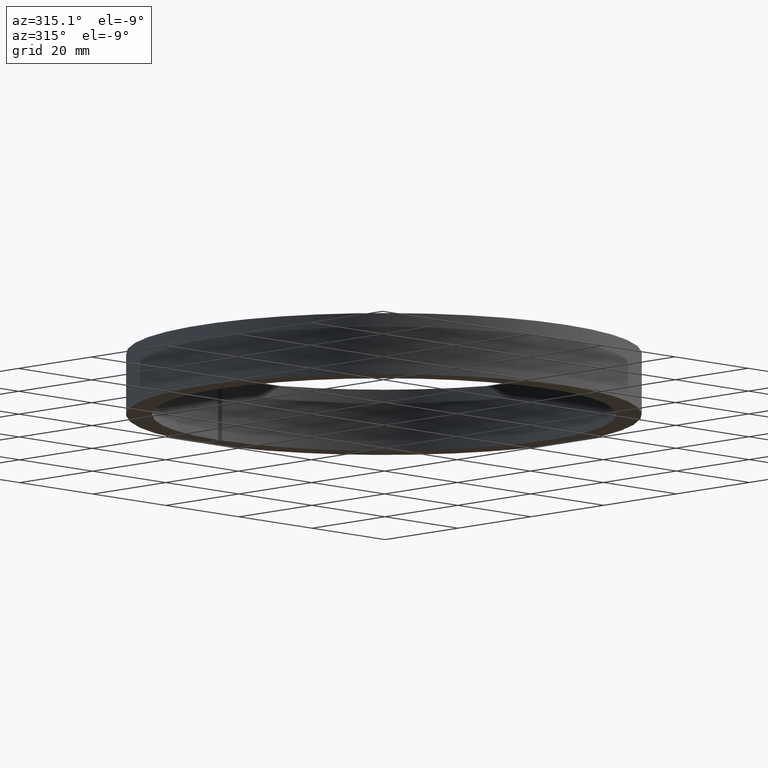
[diagram: clean part render]
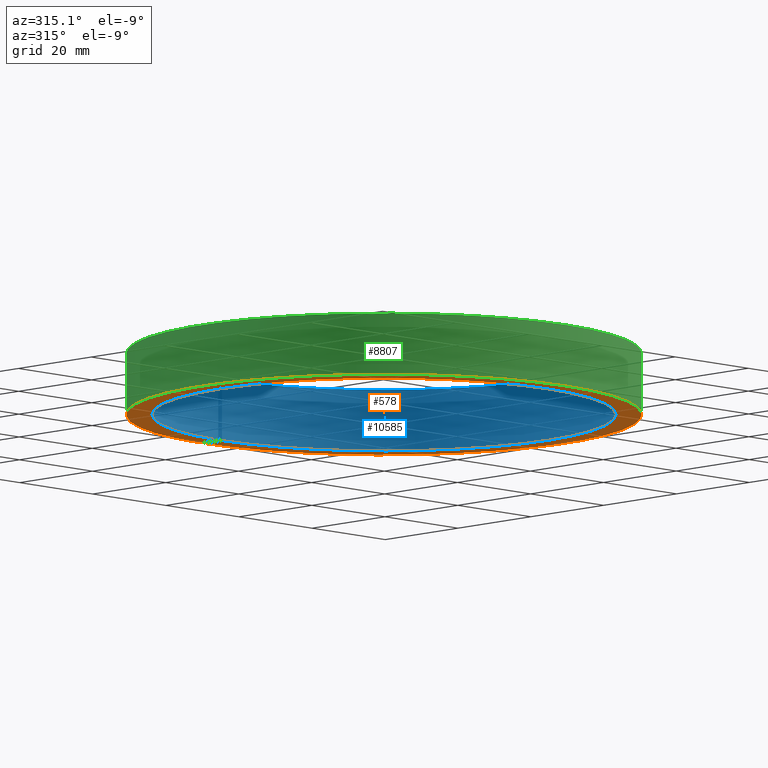
[diagram: same view with three faces highlighted in distinct colors, each labeled with its STEP entity id]
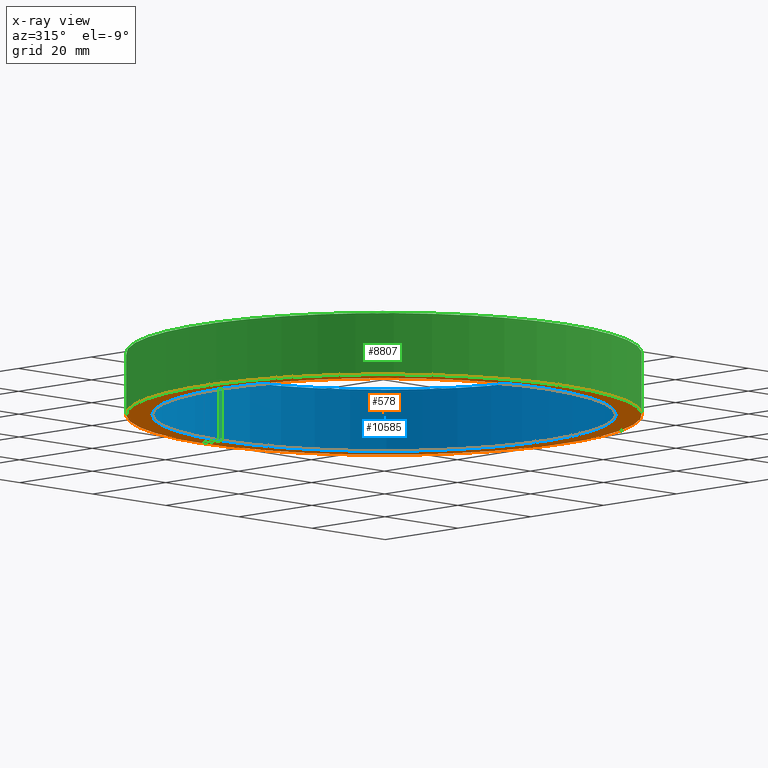
[diagram: x-ray of the same camera — body ghosted, the three highlighted faces saturated]
A machine part, auxiliary view with three faces highlighted in distinct colors.
The next image is the same camera in x-ray (body ghosted, the three faces saturated) — at least one of them is partly hidden behind the body in this view.
Their STEP definitions:

[orange] entity #578 — the highlighted planar face has unit normal (0, 0, 1).
#578 = ADVANCED_FACE ( 'NONE', ( #6791 ), #9005, .F. ) ;
#1194 = EDGE_CURVE ( 'NONE', #7852, #7954, #6349, .T. ) ;
#1467 = CARTESIAN_POINT ( 'NONE',  ( 0.000000000000000000, 0.000000000000000000, -6.000000000000003553 ) ) ;
#1851 = AXIS2_PLACEMENT_3D ( 'NONE', #1467, #6240, #3358 ) ;
#3217 = CARTESIAN_POINT ( 'NONE',  ( -0.5000000000000000000, 0.000000000000000000, -6.000000000000003553 ) ) ;
#3358 = DIRECTION ( 'NONE',  ( -1.000000000000000000, 0.000000000000000000, 0.000000000000000000 ) ) ;
#3669 = EDGE_CURVE ( 'NONE', #9272, #11662, #9177, .T. ) ;
#3751 = DIRECTION ( 'NONE',  ( -0.000000000000000000, -0.000000000000000000, -1.000000000000000000 ) ) ;
#3787 = VECTOR ( 'NONE', #11438, 1000.000000000000000 ) ;
#4240 = VECTOR ( 'NONE', #8148, 1000.000000000000000 ) ;
#4373 = ORIENTED_EDGE ( 'NONE', *, *, #1194, .F. ) ;
#4642 = CARTESIAN_POINT ( 'NONE',  ( 0.000000000000000000, 0.000000000000000000, -6.000000000000002665 ) ) ;
#5013 = CARTESIAN_POINT ( 'NONE',  ( -0.5000000000000000000, 44.99722213648305313, -6.000000000000003553 ) ) ;
#5561 = DIRECTION ( 'NONE',  ( -1.000000000000000000, 0.000000000000000000, 0.000000000000000000 ) ) ;
#5852 = ORIENTED_EDGE ( 'NONE', *, *, #10098, .T. ) ;
#6240 = DIRECTION ( 'NONE',  ( -0.000000000000000000, -0.000000000000000000, -1.000000000000000000 ) ) ;
#6349 = LINE ( 'NONE', #3217, #4240 ) ;
#6791 = FACE_OUTER_BOUND ( 'NONE', #6871, .T. ) ;
#6871 = EDGE_LOOP ( 'NONE', ( #9551, #8939, #5852, #4373 ) ) ;
#6940 = CARTESIAN_POINT ( 'NONE',  ( 0.5000000000000000000, 49.99749993749687604, -6.000000000000003553 ) ) ;
#7243 = CIRCLE ( 'NONE', #1851, 50.00000000000000000 ) ;
#7315 = CARTESIAN_POINT ( 'NONE',  ( -0.5000000000000000000, 49.99749993749687604, -6.000000000000003553 ) ) ;
#7852 = VERTEX_POINT ( 'NONE', #5013 ) ;
#7940 = CARTESIAN_POINT ( 'NONE',  ( 0.5000000000000000000, 44.99722213648305313, -6.000000000000003553 ) ) ;
#7954 = VERTEX_POINT ( 'NONE', #7315 ) ;
#8148 = DIRECTION ( 'NONE',  ( 0.000000000000000000, 1.000000000000000000, -0.000000000000000000 ) ) ;
#8939 = ORIENTED_EDGE ( 'NONE', *, *, #3669, .T. ) ;
#9005 = PLANE ( 'NONE',  #10828 ) ;
#9177 = LINE ( 'NONE', #12380, #3787 ) ;
#9272 = VERTEX_POINT ( 'NONE', #7940 ) ;
#9551 = ORIENTED_EDGE ( 'NONE', *, *, #9589, .F. ) ;
#9589 = EDGE_CURVE ( 'NONE', #9272, #7852, #9629, .T. ) ;
#9629 = CIRCLE ( 'NONE', #9780, 45.00000000000000711 ) ;
#9780 = AXIS2_PLACEMENT_3D ( 'NONE', #4642, #3751, #5561 ) ;
#9930 = DIRECTION ( 'NONE',  ( 1.000000000000000000, 0.000000000000000000, -0.000000000000000000 ) ) ;
#10005 = DIRECTION ( 'NONE',  ( 0.000000000000000000, 0.000000000000000000, 1.000000000000000000 ) ) ;
#10098 = EDGE_CURVE ( 'NONE', #11662, #7954, #7243, .T. ) ;
#10828 = AXIS2_PLACEMENT_3D ( 'NONE', #11944, #10005, #9930 ) ;
#11438 = DIRECTION ( 'NONE',  ( 0.000000000000000000, 1.000000000000000000, -0.000000000000000000 ) ) ;
#11662 = VERTEX_POINT ( 'NONE', #6940 ) ;
#11944 = CARTESIAN_POINT ( 'NONE',  ( 0.000000000000000000, -45.00000000000000711, -6.000000000000003553 ) ) ;
#12380 = CARTESIAN_POINT ( 'NONE',  ( 0.5000000000000000000, 0.000000000000000000, -6.000000000000003553 ) ) ;

[blue] entity #10585 — the highlighted cylindrical surface (partial cylindrical patch) has radius 45 mm, axis along (-0, -0, -1).
#641 = VECTOR ( 'NONE', #4727, 1000.000000000000000 ) ;
#1896 = EDGE_CURVE ( 'NONE', #11989, #6311, #10073, .T. ) ;
#1911 = EDGE_CURVE ( 'NONE', #9272, #11989, #12030, .T. ) ;
#2184 = CARTESIAN_POINT ( 'NONE',  ( -0.5000000000000000000, 44.99722213648305313, 5.999999999999996447 ) ) ;
#2360 = DIRECTION ( 'NONE',  ( -0.000000000000000000, -0.000000000000000000, -1.000000000000000000 ) ) ;
#2453 = DIRECTION ( 'NONE',  ( -1.000000000000000000, 0.000000000000000000, 0.000000000000000000 ) ) ;
#2792 = CARTESIAN_POINT ( 'NONE',  ( 0.000000000000000000, 0.000000000000000000, 5.999999999999996447 ) ) ;
#3751 = DIRECTION ( 'NONE',  ( -0.000000000000000000, -0.000000000000000000, -1.000000000000000000 ) ) ;
#4097 = LINE ( 'NONE', #6347, #6946 ) ;
#4546 = CYLINDRICAL_SURFACE ( 'NONE', #11314, 45.00000000000000711 ) ;
#4642 = CARTESIAN_POINT ( 'NONE',  ( 0.000000000000000000, 0.000000000000000000, -6.000000000000002665 ) ) ;
#4727 = DIRECTION ( 'NONE',  ( -0.000000000000000000, -0.000000000000000000, 1.000000000000000000 ) ) ;
#4761 = DIRECTION ( 'NONE',  ( -1.000000000000000000, 0.000000000000000000, 0.000000000000000000 ) ) ;
#5013 = CARTESIAN_POINT ( 'NONE',  ( -0.5000000000000000000, 44.99722213648305313, -6.000000000000003553 ) ) ;
#5561 = DIRECTION ( 'NONE',  ( -1.000000000000000000, 0.000000000000000000, 0.000000000000000000 ) ) ;
#5736 = FACE_OUTER_BOUND ( 'NONE', #6865, .T. ) ;
#6311 = VERTEX_POINT ( 'NONE', #2184 ) ;
#6347 = CARTESIAN_POINT ( 'NONE',  ( -0.5000000000000000000, 44.99722213648305313, -6.000000000000003553 ) ) ;
#6399 = AXIS2_PLACEMENT_3D ( 'NONE', #2792, #9487, #4761 ) ;
#6865 = EDGE_LOOP ( 'NONE', ( #7801, #11358, #9547, #10588 ) ) ;
#6946 = VECTOR ( 'NONE', #8519, 1000.000000000000000 ) ;
#7567 = CARTESIAN_POINT ( 'NONE',  ( 0.5000000000000000000, 44.99722213648305313, -6.000000000000003553 ) ) ;
#7801 = ORIENTED_EDGE ( 'NONE', *, *, #1896, .F. ) ;
#7852 = VERTEX_POINT ( 'NONE', #5013 ) ;
#7940 = CARTESIAN_POINT ( 'NONE',  ( 0.5000000000000000000, 44.99722213648305313, -6.000000000000003553 ) ) ;
#8519 = DIRECTION ( 'NONE',  ( -0.000000000000000000, -0.000000000000000000, 1.000000000000000000 ) ) ;
#8797 = EDGE_CURVE ( 'NONE', #7852, #6311, #4097, .T. ) ;
#9272 = VERTEX_POINT ( 'NONE', #7940 ) ;
#9487 = DIRECTION ( 'NONE',  ( -0.000000000000000000, -0.000000000000000000, -1.000000000000000000 ) ) ;
#9547 = ORIENTED_EDGE ( 'NONE', *, *, #9589, .T. ) ;
#9589 = EDGE_CURVE ( 'NONE', #9272, #7852, #9629, .T. ) ;
#9629 = CIRCLE ( 'NONE', #9780, 45.00000000000000711 ) ;
#9780 = AXIS2_PLACEMENT_3D ( 'NONE', #4642, #3751, #5561 ) ;
#10073 = CIRCLE ( 'NONE', #6399, 45.00000000000000711 ) ;
#10585 = ADVANCED_FACE ( 'NONE', ( #5736 ), #4546, .F. ) ;
#10588 = ORIENTED_EDGE ( 'NONE', *, *, #8797, .T. ) ;
#11314 = AXIS2_PLACEMENT_3D ( 'NONE', #11963, #2360, #2453 ) ;
#11358 = ORIENTED_EDGE ( 'NONE', *, *, #1911, .F. ) ;
#11740 = CARTESIAN_POINT ( 'NONE',  ( 0.5000000000000000000, 44.99722213648305313, 5.999999999999996447 ) ) ;
#11963 = CARTESIAN_POINT ( 'NONE',  ( 0.000000000000000000, 0.000000000000000000, 0.000000000000000000 ) ) ;
#11989 = VERTEX_POINT ( 'NONE', #11740 ) ;
#12030 = LINE ( 'NONE', #7567, #641 ) ;

[green] entity #8807 — the highlighted cylindrical surface (partial cylindrical patch) has radius 50 mm, axis along (-0, -0, -1).
#6 = EDGE_LOOP ( 'NONE', ( #8401, #7489, #6237, #3426 ) ) ;
#891 = CARTESIAN_POINT ( 'NONE',  ( -0.5000000000000000000, 49.99749993749687604, -6.000000000000003553 ) ) ;
#1157 = CARTESIAN_POINT ( 'NONE',  ( 0.5000000000000000000, 49.99749993749687604, 5.999999999999996447 ) ) ;
#1245 = VECTOR ( 'NONE', #2813, 1000.000000000000000 ) ;
#1467 = CARTESIAN_POINT ( 'NONE',  ( 0.000000000000000000, 0.000000000000000000, -6.000000000000003553 ) ) ;
#1733 = DIRECTION ( 'NONE',  ( -1.000000000000000000, 0.000000000000000000, 0.000000000000000000 ) ) ;
#1813 = DIRECTION ( 'NONE',  ( -0.000000000000000000, -0.000000000000000000, -1.000000000000000000 ) ) ;
#1851 = AXIS2_PLACEMENT_3D ( 'NONE', #1467, #6240, #3358 ) ;
#2119 = VERTEX_POINT ( 'NONE', #2486 ) ;
#2486 = CARTESIAN_POINT ( 'NONE',  ( -0.5000000000000000000, 49.99749993749687604, 5.999999999999996447 ) ) ;
#2772 = DIRECTION ( 'NONE',  ( -1.000000000000000000, 0.000000000000000000, 0.000000000000000000 ) ) ;
#2813 = DIRECTION ( 'NONE',  ( -0.000000000000000000, -0.000000000000000000, 1.000000000000000000 ) ) ;
#3358 = DIRECTION ( 'NONE',  ( -1.000000000000000000, 0.000000000000000000, 0.000000000000000000 ) ) ;
#3426 = ORIENTED_EDGE ( 'NONE', *, *, #3609, .F. ) ;
#3591 = EDGE_CURVE ( 'NONE', #11657, #2119, #11881, .T. ) ;
#3609 = EDGE_CURVE ( 'NONE', #7954, #2119, #12033, .T. ) ;
#6046 = VECTOR ( 'NONE', #9698, 1000.000000000000000 ) ;
#6059 = LINE ( 'NONE', #12459, #6046 ) ;
#6237 = ORIENTED_EDGE ( 'NONE', *, *, #3591, .T. ) ;
#6240 = DIRECTION ( 'NONE',  ( -0.000000000000000000, -0.000000000000000000, -1.000000000000000000 ) ) ;
#6940 = CARTESIAN_POINT ( 'NONE',  ( 0.5000000000000000000, 49.99749993749687604, -6.000000000000003553 ) ) ;
#7243 = CIRCLE ( 'NONE', #1851, 50.00000000000000000 ) ;
#7298 = AXIS2_PLACEMENT_3D ( 'NONE', #10989, #1813, #1733 ) ;
#7315 = CARTESIAN_POINT ( 'NONE',  ( -0.5000000000000000000, 49.99749993749687604, -6.000000000000003553 ) ) ;
#7489 = ORIENTED_EDGE ( 'NONE', *, *, #8477, .T. ) ;
#7665 = CARTESIAN_POINT ( 'NONE',  ( 0.000000000000000000, 0.000000000000000000, 5.999999999999996447 ) ) ;
#7954 = VERTEX_POINT ( 'NONE', #7315 ) ;
#8401 = ORIENTED_EDGE ( 'NONE', *, *, #10098, .F. ) ;
#8462 = FACE_OUTER_BOUND ( 'NONE', #6, .T. ) ;
#8477 = EDGE_CURVE ( 'NONE', #11662, #11657, #6059, .T. ) ;
#8512 = DIRECTION ( 'NONE',  ( -0.000000000000000000, -0.000000000000000000, -1.000000000000000000 ) ) ;
#8807 = ADVANCED_FACE ( 'NONE', ( #8462 ), #10699, .T. ) ;
#9698 = DIRECTION ( 'NONE',  ( -0.000000000000000000, -0.000000000000000000, 1.000000000000000000 ) ) ;
#10098 = EDGE_CURVE ( 'NONE', #11662, #7954, #7243, .T. ) ;
#10699 = CYLINDRICAL_SURFACE ( 'NONE', #7298, 50.00000000000000000 ) ;
#10885 = AXIS2_PLACEMENT_3D ( 'NONE', #7665, #8512, #2772 ) ;
#10989 = CARTESIAN_POINT ( 'NONE',  ( 0.000000000000000000, 0.000000000000000000, 0.000000000000000000 ) ) ;
#11657 = VERTEX_POINT ( 'NONE', #1157 ) ;
#11662 = VERTEX_POINT ( 'NONE', #6940 ) ;
#11881 = CIRCLE ( 'NONE', #10885, 50.00000000000000000 ) ;
#12033 = LINE ( 'NONE', #891, #1245 ) ;
#12459 = CARTESIAN_POINT ( 'NONE',  ( 0.5000000000000000000, 49.99749993749687604, -6.000000000000003553 ) ) ;